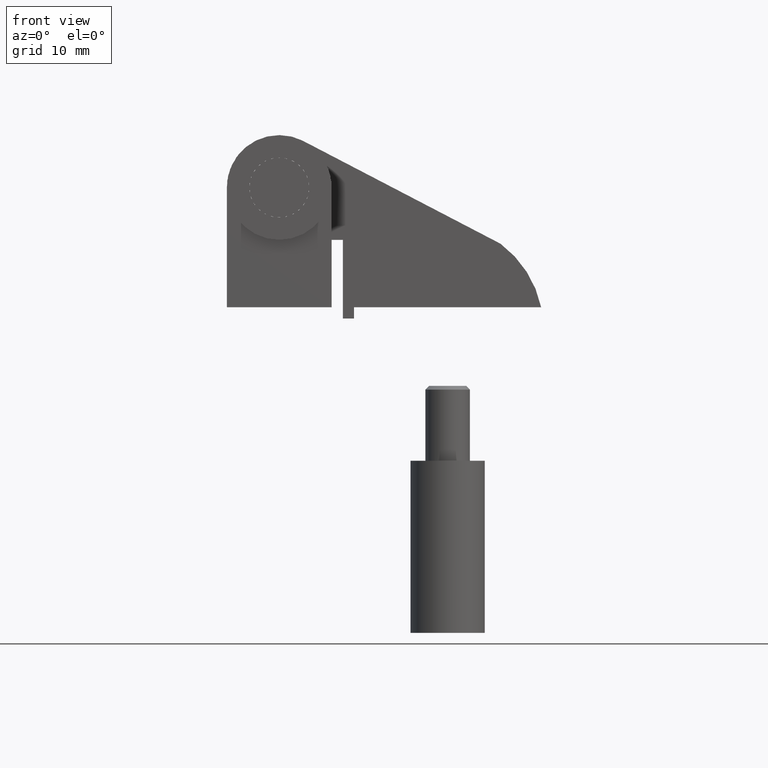
[diagram: clean part render]
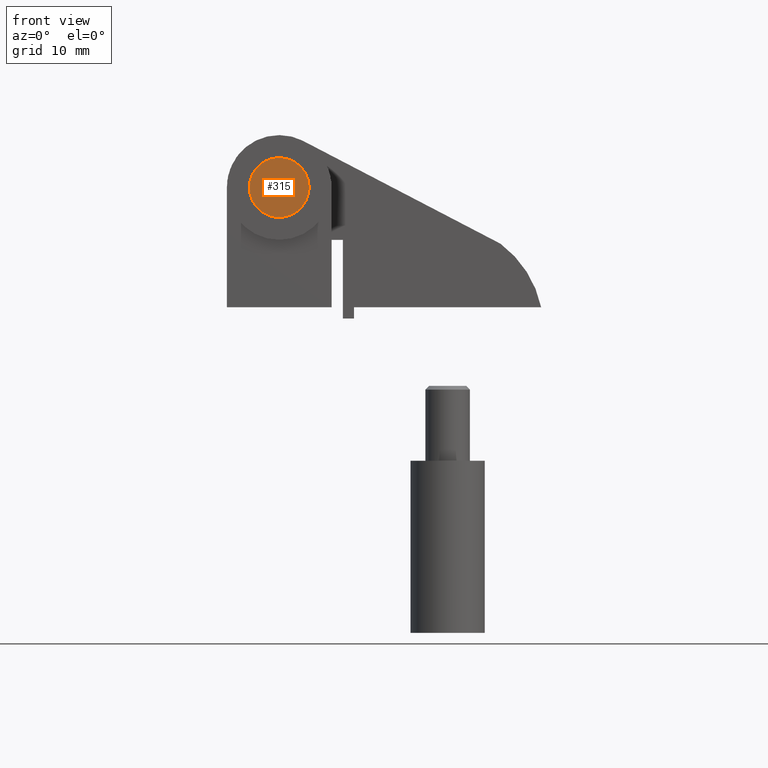
[diagram: same view with one face highlighted and labeled with its STEP entity id]
A machine part, front view. The second image highlights one B-rep face of the part: STEP entity #315.
In plain terms, the highlighted planar face has unit normal (0, 1, 0).
Its self-contained STEP definition (entity closure, byte-faithful):
#260=CARTESIAN_POINT('',(-11.000000000000002,-29.0,16.0));
#261=VERTEX_POINT('',#260);
#262=CARTESIAN_POINT('',(-3.000000000000002,-29.0,16.0));
#263=VERTEX_POINT('',#262);
#264=CARTESIAN_POINT('',(-7.000000000000002,-28.999999999999996,16.0));
#265=DIRECTION('',(1.224647E-016,1.0,-6.123234E-017));
#266=DIRECTION('',(-1.0,1.224647E-016,-1.232595E-032));
#267=AXIS2_PLACEMENT_3D('',#264,#265,#266);
#268=CIRCLE('',#267,4.0);
#269=EDGE_CURVE('',#261,#263,#268,.T.);
#271=CARTESIAN_POINT('',(-7.000000000000002,-28.999999999999996,16.0));
#272=DIRECTION('',(1.224647E-016,1.0,-6.123234E-017));
#273=DIRECTION('',(-1.0,1.224647E-016,-1.232595E-032));
#274=AXIS2_PLACEMENT_3D('',#271,#272,#273);
#275=CIRCLE('',#274,4.0);
#276=EDGE_CURVE('',#263,#261,#275,.T.);
#306=CARTESIAN_POINT('',(-2.199879998205121,-29.0,11.199879998206827));
#307=DIRECTION('',(0.0,1.0,0.0));
#308=DIRECTION('',(-1.0,0.0,0.0));
#309=AXIS2_PLACEMENT_3D('',#306,#307,#308);
#310=PLANE('',#309);
#311=ORIENTED_EDGE('',*,*,#276,.F.);
#312=ORIENTED_EDGE('',*,*,#269,.F.);
#313=EDGE_LOOP('',(#311,#312));
#314=FACE_OUTER_BOUND('',#313,.T.);
#315=ADVANCED_FACE('',(#314),#310,.F.);